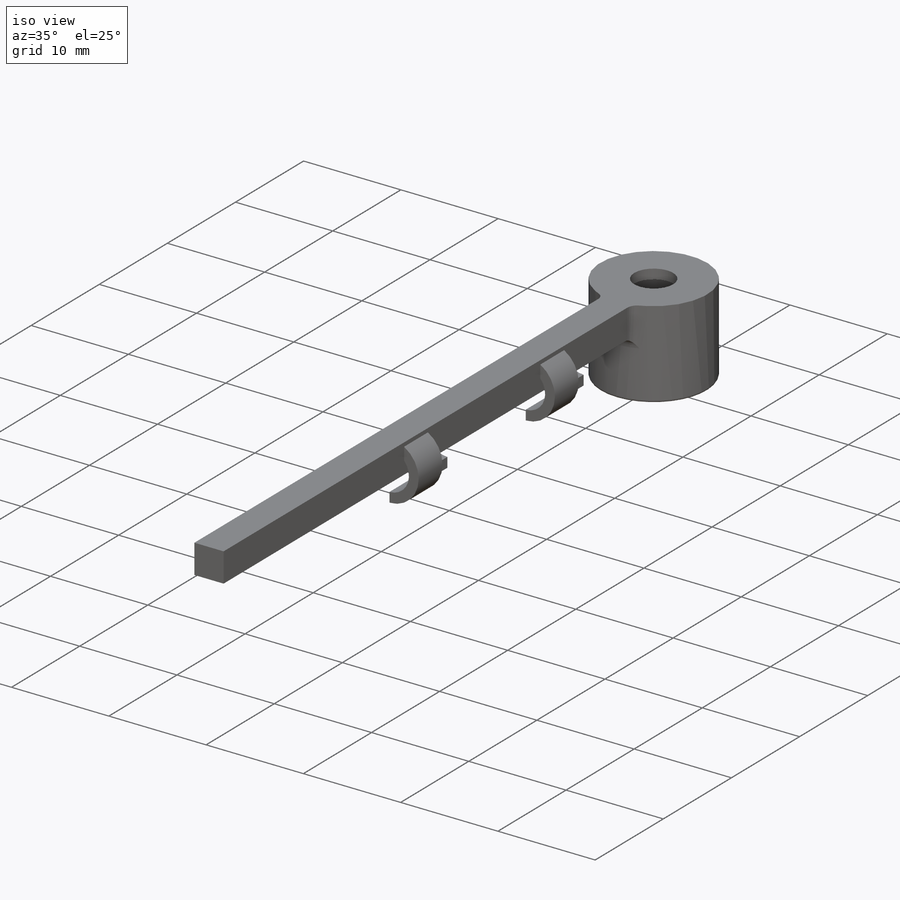
[diagram: iso view]
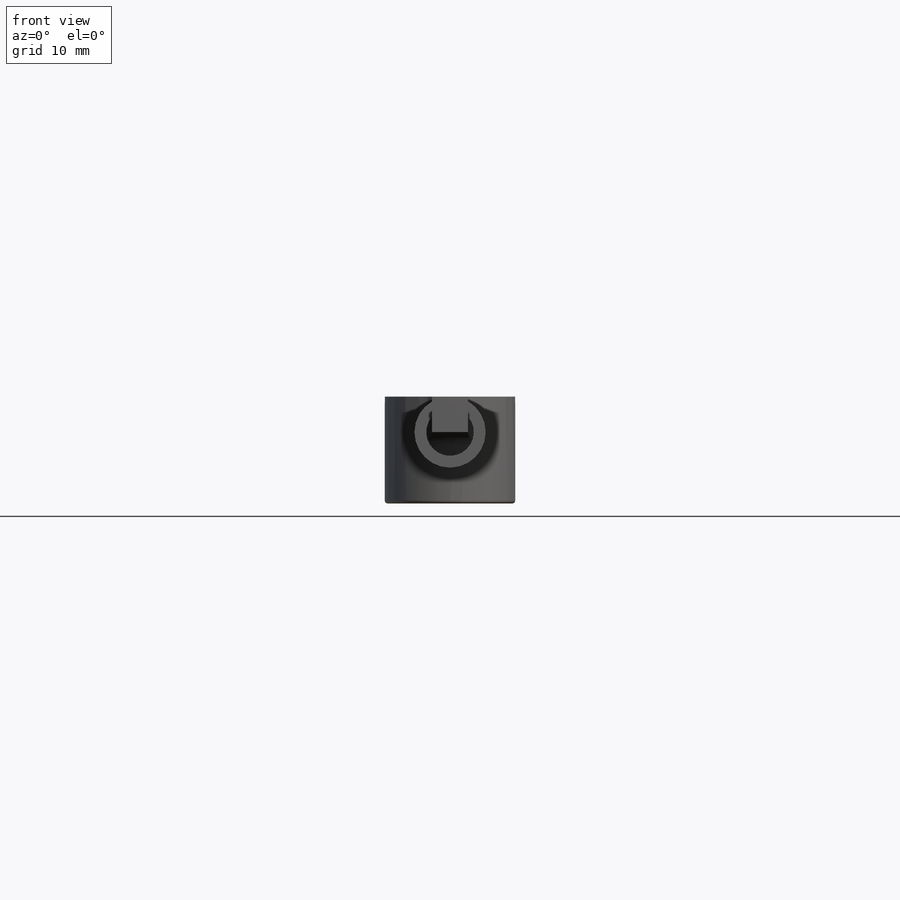
[diagram: front view]
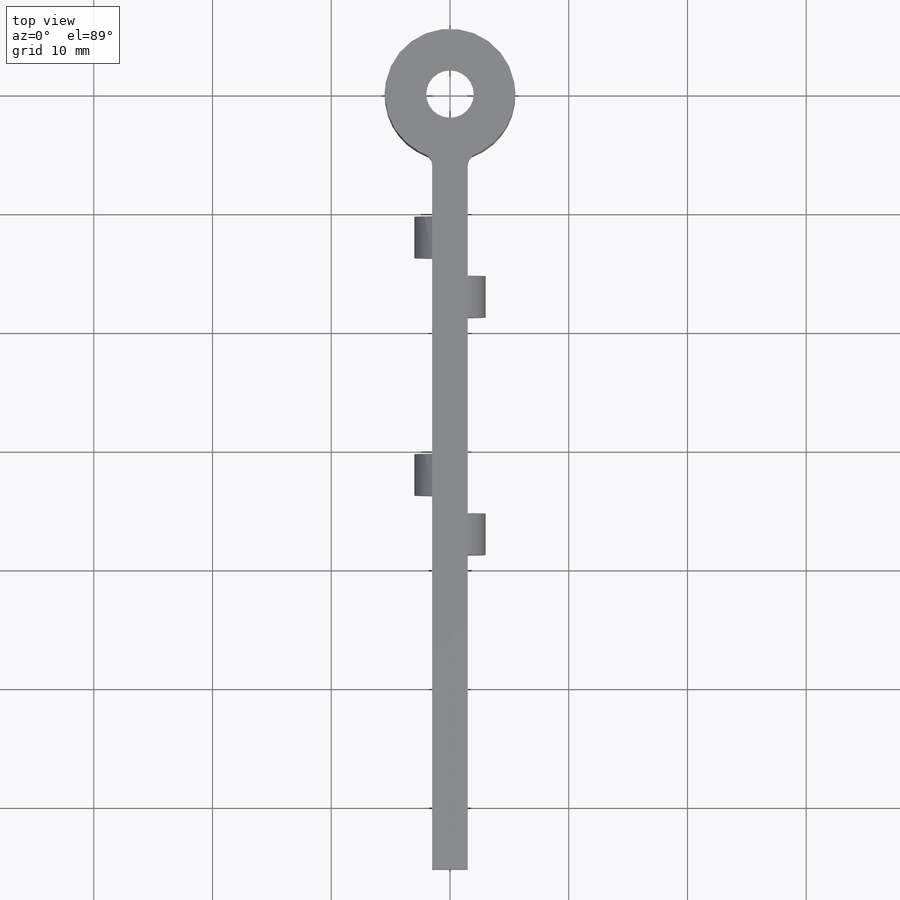
[diagram: top view]
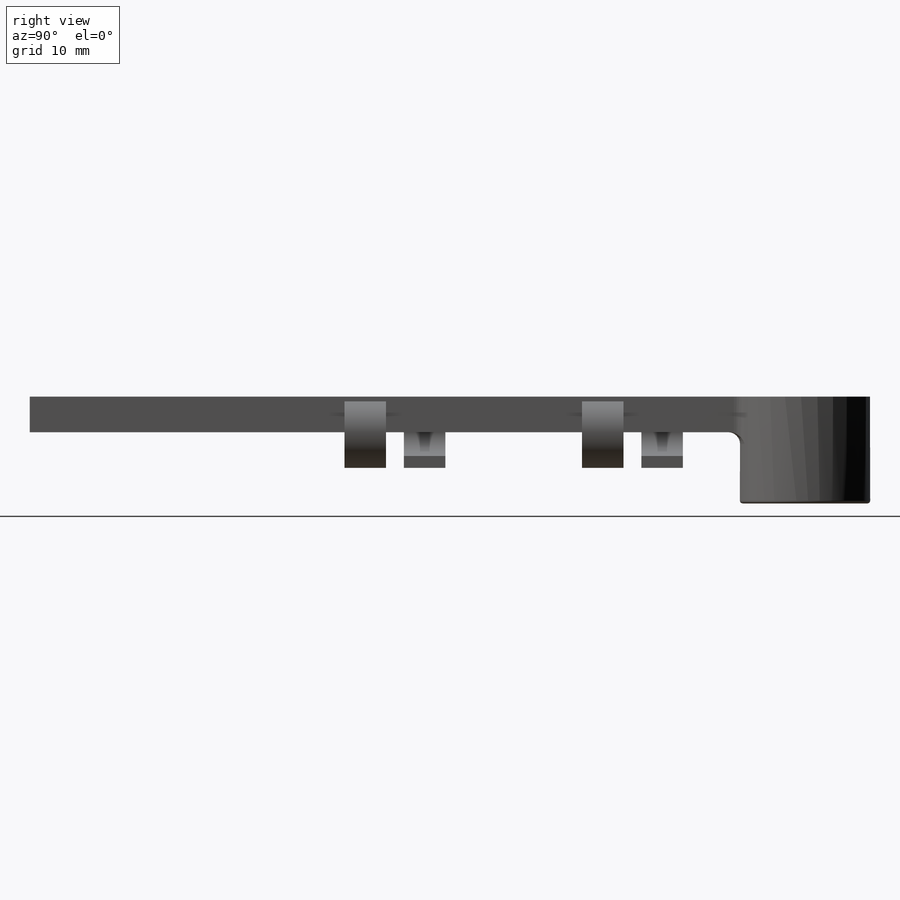
[diagram: right view]
SOLIDWORKS PART (.sldprt)
format: sldprt  version: not decoded by parser v0  size: 554,496 bytes
history: native  units: mm
features: sketch x8, extrude x6, plane x5, fillet x5, cut_extrude x2, material x1 (+13 scaffold rows collapsed)
feature tree (40):
  scaffold x13  (default folders/planes/origin — collapsed)
  material  "Material <not specified>"
  sketch  "Sketch1"  dims[D1=5.28mm]
  extrude  "Boss-Extrude1"  Depth=9mm
  plane  "Plane1"  Offset=0mm
  sketch  "Sketch3"  dims[D1=4.4mm]
  cut_extrude  "Cut-Extrude1"  Depth=8mm
  sketch  "Sketch4"  dims[D1=~2.289081mm]
  cut_extrude  "Cut-Extrude2"  Depth=1mm
  sketch  "Sketch5"  dims[c1.D1=4.5mm c1.D3=11.0mm c2.D1=60.0mm c2.D2=60.0mm c2.D3=0.0mm]
  extrude  "Boss-Extrude2"  Depth=3mm
  fillet  "Fillet5"  Radius=1mm
  fillet  "Fillet6"  Radius=1mm
  fillet  "Fillet7"  Radius=1mm
  fillet  "Fillet8"  Radius=0.25mm
  fillet  "Fillet9"  Radius=0.25mm
  plane  "Plane2"  Offset=55mm
  sketch  "Sketch6"  dims[D1=3.0mm]
  extrude  "Boss-Extrude3"  Depth=3.5mm
  plane  "Plane3"  Offset=30mm
  sketch  "Sketch7"  dims[D1=3.0mm]
  extrude  "Boss-Extrude4"  Depth=3.5mm
  plane  "Plane4"  Offset=50mm
  sketch  "Sketch8"  dims[D1=3.0mm D2=1.0mm D3=1.0mm]
  plane  "Plane5"  Offset=35mm
  sketch  "Sketch10"  dims[D1=3.0mm]
  extrude  "Boss-Extrude5"  Depth=3.5mm
  extrude  "Boss-Extrude6"  Depth=3.5mm
decode coverage: 21 of 21 modeling features carry decoded parameters
note: ~ marks probable driven/reference dimensions
note: suppression state not decoded; provenance and decode notes live in map.json
